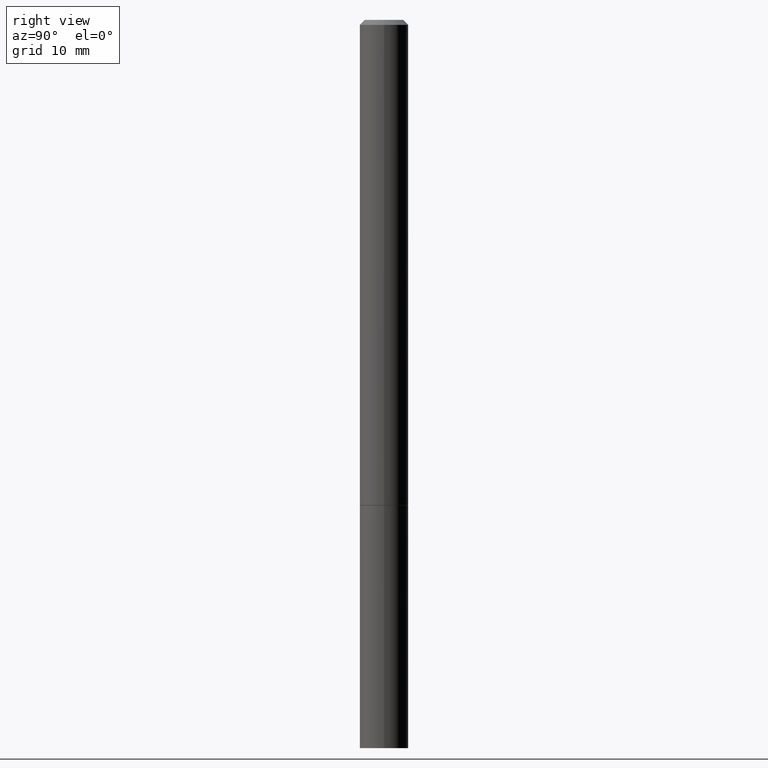
[diagram: clean part render]
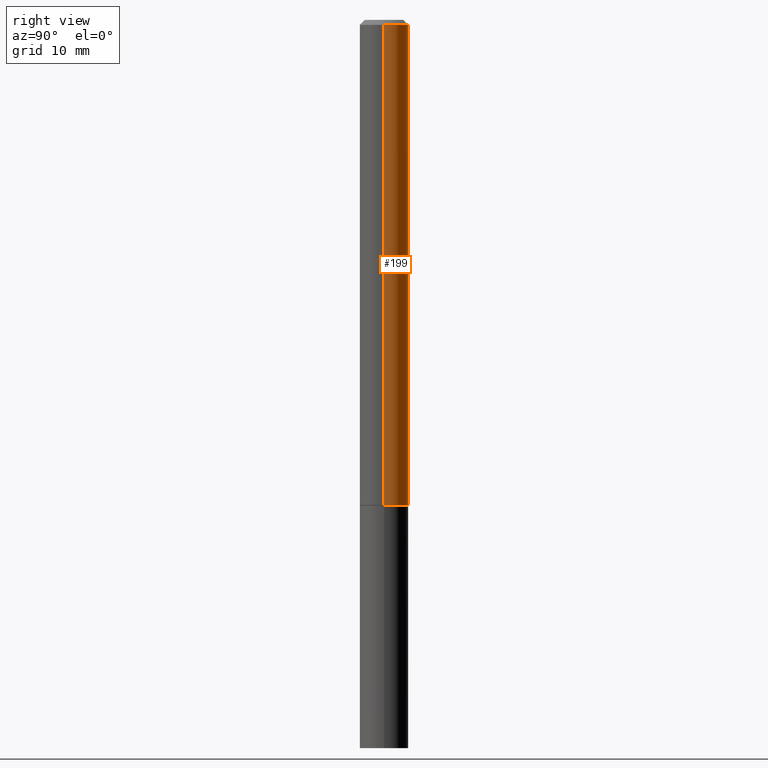
[diagram: same view with one face highlighted and labeled with its STEP entity id]
A machine part, right view. The second image highlights one B-rep face of the part: STEP entity #199.
In plain terms, the highlighted cylindrical surface (edge-blend (fillet) strip) has radius 2.5006 mm, axis along (-0, 0, 1).
Its self-contained STEP definition (entity closure, byte-faithful):
#6 = CARTESIAN_POINT ( 'NONE',  ( -0.09844999999999987095, 6.995293233558177160E-16, -4.842691596355948437E-30 ) ) ;
#14 = CIRCLE ( 'NONE', #86, 0.09844999999999975993 ) ;
#73 = EDGE_LOOP ( 'NONE', ( #284, #139, #173, #180 ) ) ;
#76 = DIRECTION ( 'NONE',  ( -2.445468806185136597E-29, 3.491481338843145583E-15, 1.000000000000000000 ) ) ;
#79 = CARTESIAN_POINT ( 'NONE',  ( 0.09844999999999999585, -7.556962209792099682E-15, -1.967499999999999805 ) ) ;
#84 = LINE ( 'NONE', #6, #215 ) ;
#86 = AXIS2_PLACEMENT_3D ( 'NONE', #316, #279, #194 ) ;
#113 = VERTEX_POINT ( 'NONE', #79 ) ;
#125 = EDGE_CURVE ( 'NONE', #113, #348, #325, .T. ) ;
#139 = ORIENTED_EDGE ( 'NONE', *, *, #158, .T. ) ;
#145 = FACE_OUTER_BOUND ( 'NONE', #73, .T. ) ;
#150 = EDGE_CURVE ( 'NONE', #113, #200, #286, .T. ) ;
#158 = EDGE_CURVE ( 'NONE', #348, #343, #84, .T. ) ;
#166 = DIRECTION ( 'NONE',  ( -2.445468806185136877E-29, 3.491481338843145188E-15, 1.000000000000000000 ) ) ;
#170 = AXIS2_PLACEMENT_3D ( 'NONE', #330, #76, #185 ) ;
#173 = ORIENTED_EDGE ( 'NONE', *, *, #189, .F. ) ;
#180 = ORIENTED_EDGE ( 'NONE', *, *, #150, .F. ) ;
#185 = DIRECTION ( 'NONE',  ( 1.000000000000000000, -6.982962677686265922E-15, 0.000000000000000000 ) ) ;
#189 = EDGE_CURVE ( 'NONE', #200, #343, #14, .T. ) ;
#192 = AXIS2_PLACEMENT_3D ( 'NONE', #253, #224, #342 ) ;
#194 = DIRECTION ( 'NONE',  ( 1.000000000000000000, -6.982962677686266711E-15, 0.000000000000000000 ) ) ;
#198 = CARTESIAN_POINT ( 'NONE',  ( 0.09844999999999987095, -6.874726756182120670E-16, 4.800596035771092908E-30 ) ) ;
#199 = ADVANCED_FACE ( 'NONE', ( #145 ), #312, .T. ) ;
#200 = VERTEX_POINT ( 'NONE', #255 ) ;
#215 = VECTOR ( 'NONE', #283, 39.37007874015748143 ) ;
#224 = DIRECTION ( 'NONE',  ( -2.445468806185136597E-29, 3.491481338843145583E-15, 1.000000000000000000 ) ) ;
#253 = CARTESIAN_POINT ( 'NONE',  ( 0.000000000000000000, 0.000000000000000000, 0.000000000000000000 ) ) ;
#255 = CARTESIAN_POINT ( 'NONE',  ( 0.09844999999999975993, -7.452456546574685329E-16, -0.02000000000000002123 ) ) ;
#279 = DIRECTION ( 'NONE',  ( -2.445468806185136597E-29, 3.491481338843145583E-15, 1.000000000000000000 ) ) ;
#283 = DIRECTION ( 'NONE',  ( -2.445468806185136877E-29, 3.491481338843145188E-15, 1.000000000000000000 ) ) ;
#284 = ORIENTED_EDGE ( 'NONE', *, *, #125, .T. ) ;
#285 = VECTOR ( 'NONE', #166, 39.37007874015748143 ) ;
#286 = LINE ( 'NONE', #198, #285 ) ;
#288 = CARTESIAN_POINT ( 'NONE',  ( -0.09844999999999998197, -2.770130257119553156E-15, -1.967499999999999805 ) ) ;
#312 = CYLINDRICAL_SURFACE ( 'NONE', #192, 0.09844999999999987095 ) ;
#316 = CARTESIAN_POINT ( 'NONE',  ( 4.890937612370278413E-31, -6.982962677686297772E-17, -0.02000000000000002123 ) ) ;
#321 = CARTESIAN_POINT ( 'NONE',  ( -0.09844999999999975993, 6.176430488413482758E-16, -0.02000000000000002123 ) ) ;
#325 = CIRCLE ( 'NONE', #170, 0.09844999999999999585 ) ;
#330 = CARTESIAN_POINT ( 'NONE',  ( 4.811459876169255671E-29, -6.869489534173887122E-15, -1.967499999999999805 ) ) ;
#342 = DIRECTION ( 'NONE',  ( 1.000000000000000000, -6.982962677686266711E-15, 4.876176775795936353E-29 ) ) ;
#343 = VERTEX_POINT ( 'NONE', #321 ) ;
#348 = VERTEX_POINT ( 'NONE', #288 ) ;